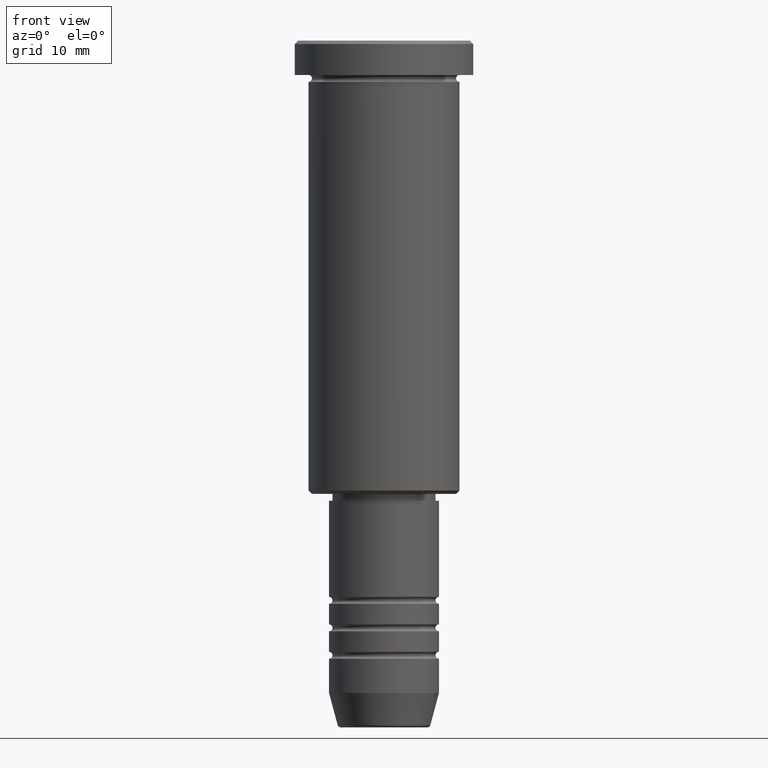
[diagram: clean part render]
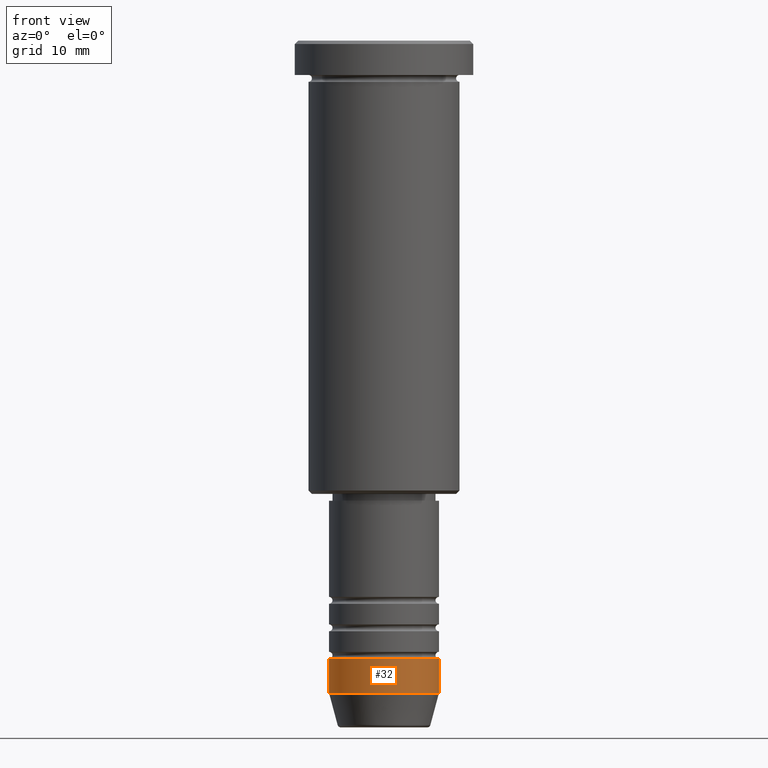
[diagram: same view with one face highlighted and labeled with its STEP entity id]
A machine part, front view. The second image highlights one B-rep face of the part: STEP entity #32.
In plain terms, the highlighted cylindrical surface (partial cylindrical patch) has radius 8 mm, axis along (-0, -0, 1).
Its self-contained STEP definition (entity closure, byte-faithful):
#5 = EDGE_LOOP ( 'NONE', ( #779, #450, #656, #671 ) ) ;
#15 = CARTESIAN_POINT ( 'NONE',  ( 8.000000000000000000, 0.000000000000000000, -90.00000000000000000 ) ) ;
#32 = ADVANCED_FACE ( 'NONE', ( #215 ), #847, .T. ) ;
#42 = VERTEX_POINT ( 'NONE', #296 ) ;
#43 = DIRECTION ( 'NONE',  ( -0.000000000000000000, -0.000000000000000000, 1.000000000000000000 ) ) ;
#74 = AXIS2_PLACEMENT_3D ( 'NONE', #750, #43, #490 ) ;
#94 = VERTEX_POINT ( 'NONE', #121 ) ;
#119 = DIRECTION ( 'NONE',  ( 1.000000000000000000, 0.000000000000000000, 0.000000000000000000 ) ) ;
#121 = CARTESIAN_POINT ( 'NONE',  ( 8.000000000000000000, 0.000000000000000000, -95.00000000000000000 ) ) ;
#152 = CIRCLE ( 'NONE', #240, 8.000000000000000000 ) ;
#160 = VERTEX_POINT ( 'NONE', #485 ) ;
#166 = DIRECTION ( 'NONE',  ( 1.000000000000000000, 0.000000000000000000, 0.000000000000000000 ) ) ;
#215 = FACE_OUTER_BOUND ( 'NONE', #5, .T. ) ;
#240 = AXIS2_PLACEMENT_3D ( 'NONE', #1170, #912, #166 ) ;
#296 = CARTESIAN_POINT ( 'NONE',  ( -8.000000000000000000, 9.797174393178825657E-16, -90.00000000000000000 ) ) ;
#344 = VERTEX_POINT ( 'NONE', #15 ) ;
#450 = ORIENTED_EDGE ( 'NONE', *, *, #1100, .T. ) ;
#472 = CIRCLE ( 'NONE', #680, 8.000000000000000000 ) ;
#485 = CARTESIAN_POINT ( 'NONE',  ( -8.000000000000000000, 9.797174393178825657E-16, -95.00000000000000000 ) ) ;
#490 = DIRECTION ( 'NONE',  ( 1.000000000000000000, 0.000000000000000000, 0.000000000000000000 ) ) ;
#503 = LINE ( 'NONE', #876, #577 ) ;
#513 = EDGE_CURVE ( 'NONE', #42, #344, #152, .T. ) ;
#577 = VECTOR ( 'NONE', #657, 1000.000000000000000 ) ;
#586 = DIRECTION ( 'NONE',  ( -0.000000000000000000, -0.000000000000000000, 1.000000000000000000 ) ) ;
#609 = DIRECTION ( 'NONE',  ( -0.000000000000000000, -0.000000000000000000, 1.000000000000000000 ) ) ;
#623 = LINE ( 'NONE', #702, #1064 ) ;
#656 = ORIENTED_EDGE ( 'NONE', *, *, #1165, .T. ) ;
#657 = DIRECTION ( 'NONE',  ( -0.000000000000000000, -0.000000000000000000, 1.000000000000000000 ) ) ;
#671 = ORIENTED_EDGE ( 'NONE', *, *, #513, .F. ) ;
#680 = AXIS2_PLACEMENT_3D ( 'NONE', #943, #586, #119 ) ;
#692 = EDGE_CURVE ( 'NONE', #160, #42, #503, .T. ) ;
#702 = CARTESIAN_POINT ( 'NONE',  ( 8.000000000000000000, 0.000000000000000000, 0.000000000000000000 ) ) ;
#750 = CARTESIAN_POINT ( 'NONE',  ( 0.000000000000000000, 0.000000000000000000, 0.000000000000000000 ) ) ;
#779 = ORIENTED_EDGE ( 'NONE', *, *, #692, .F. ) ;
#847 = CYLINDRICAL_SURFACE ( 'NONE', #74, 8.000000000000000000 ) ;
#876 = CARTESIAN_POINT ( 'NONE',  ( -8.000000000000000000, 9.797174393178825657E-16, 0.000000000000000000 ) ) ;
#912 = DIRECTION ( 'NONE',  ( -0.000000000000000000, -0.000000000000000000, 1.000000000000000000 ) ) ;
#943 = CARTESIAN_POINT ( 'NONE',  ( 0.000000000000000000, 0.000000000000000000, -95.00000000000000000 ) ) ;
#1064 = VECTOR ( 'NONE', #609, 1000.000000000000000 ) ;
#1100 = EDGE_CURVE ( 'NONE', #160, #94, #472, .T. ) ;
#1165 = EDGE_CURVE ( 'NONE', #94, #344, #623, .T. ) ;
#1170 = CARTESIAN_POINT ( 'NONE',  ( 0.000000000000000000, 0.000000000000000000, -90.00000000000000000 ) ) ;